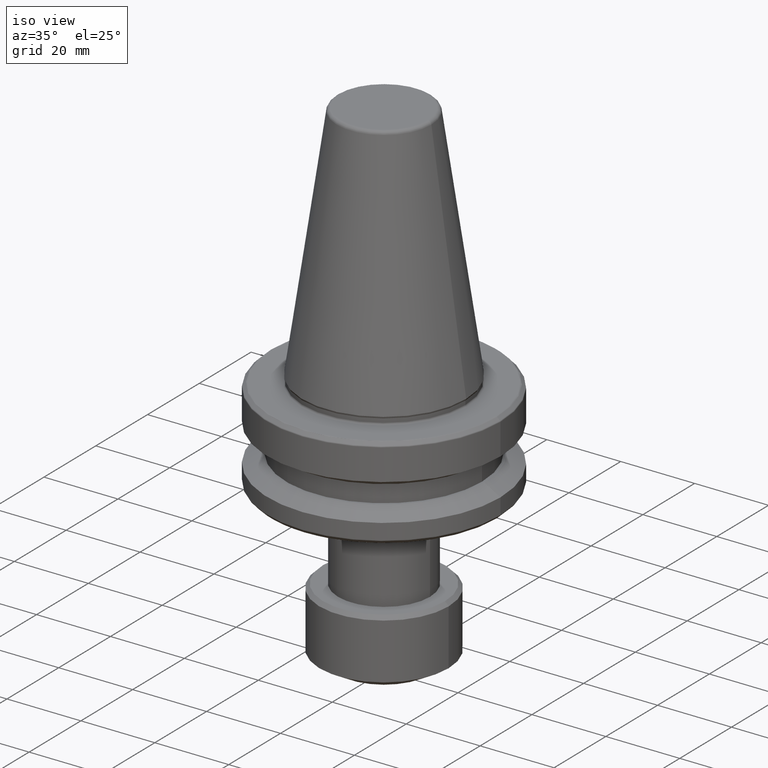
[diagram: clean part render]
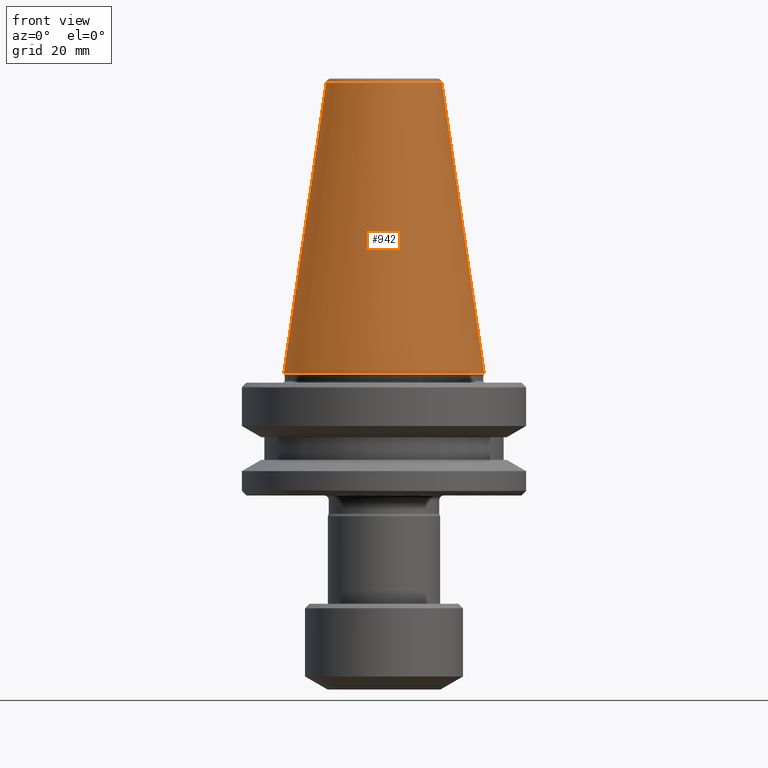
[diagram: tour spotlight — one face highlighted and labeled with its STEP entity id]
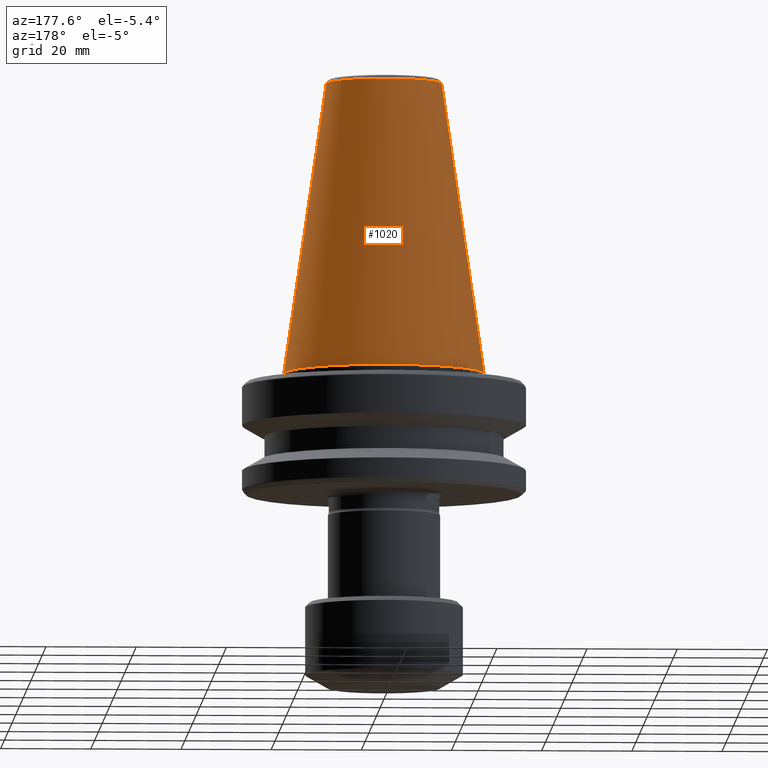
[diagram: tour spotlight — one face highlighted and labeled with its STEP entity id]
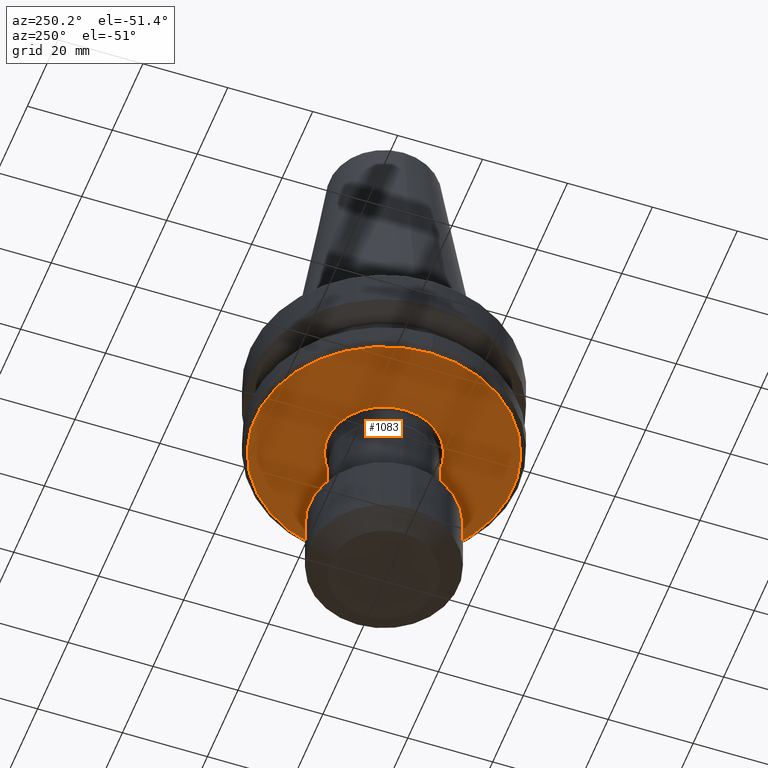
[diagram: tour spotlight — one face highlighted and labeled with its STEP entity id]
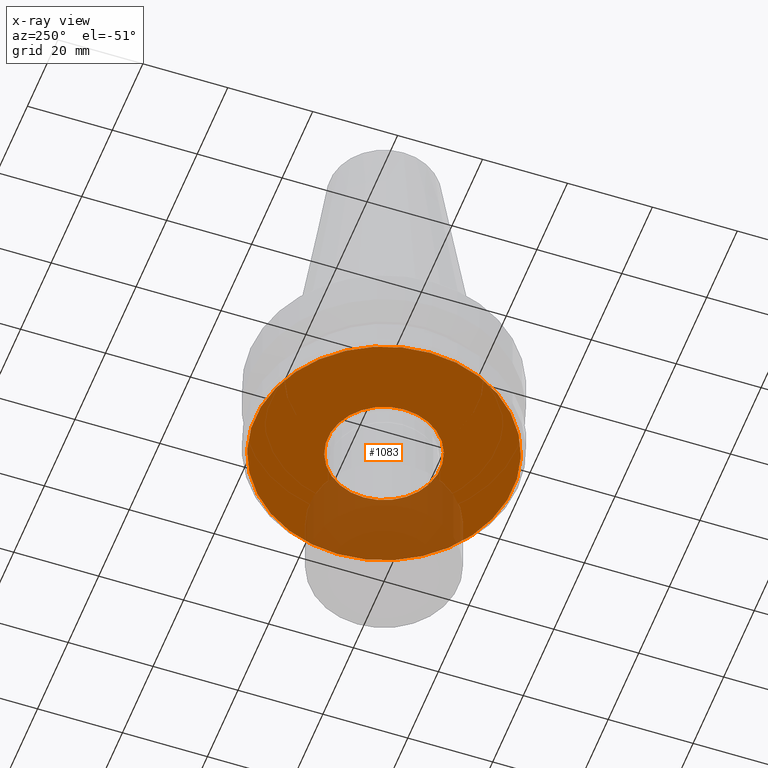
[diagram: x-ray of the same camera — body ghosted, this tour face saturated]
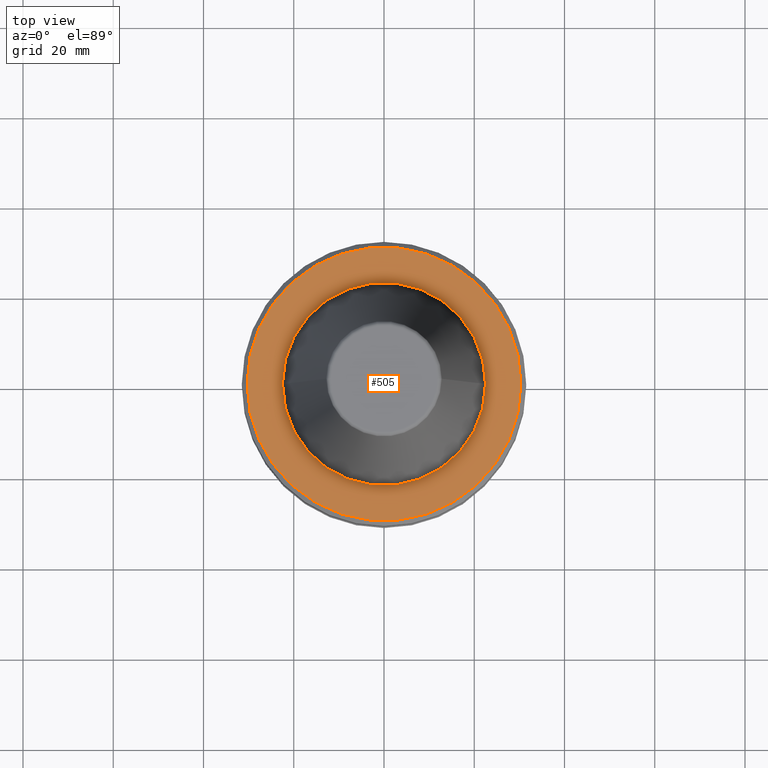
[diagram: tour spotlight — one face highlighted and labeled with its STEP entity id]
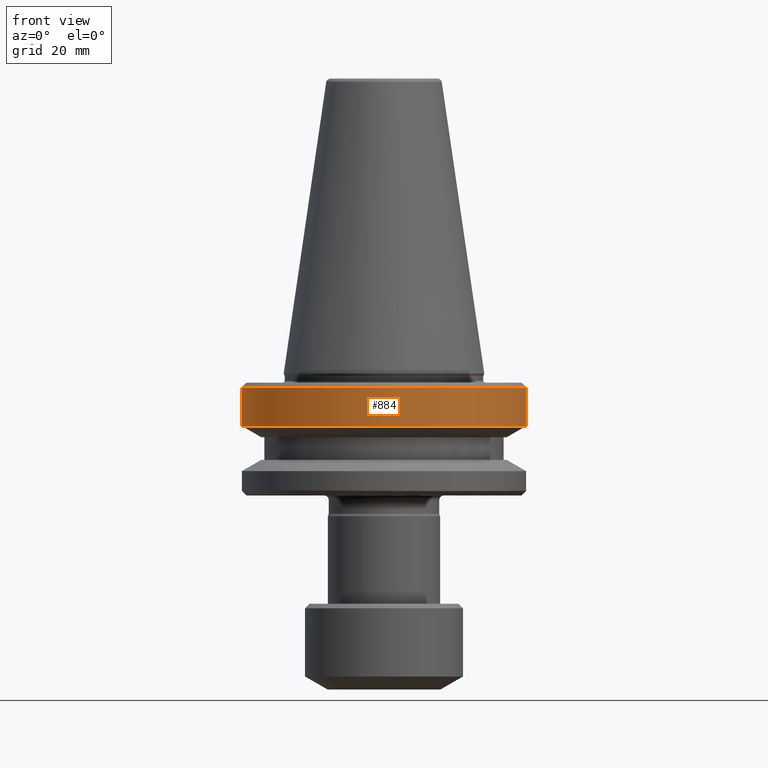
[diagram: tour spotlight — one face highlighted and labeled with its STEP entity id]
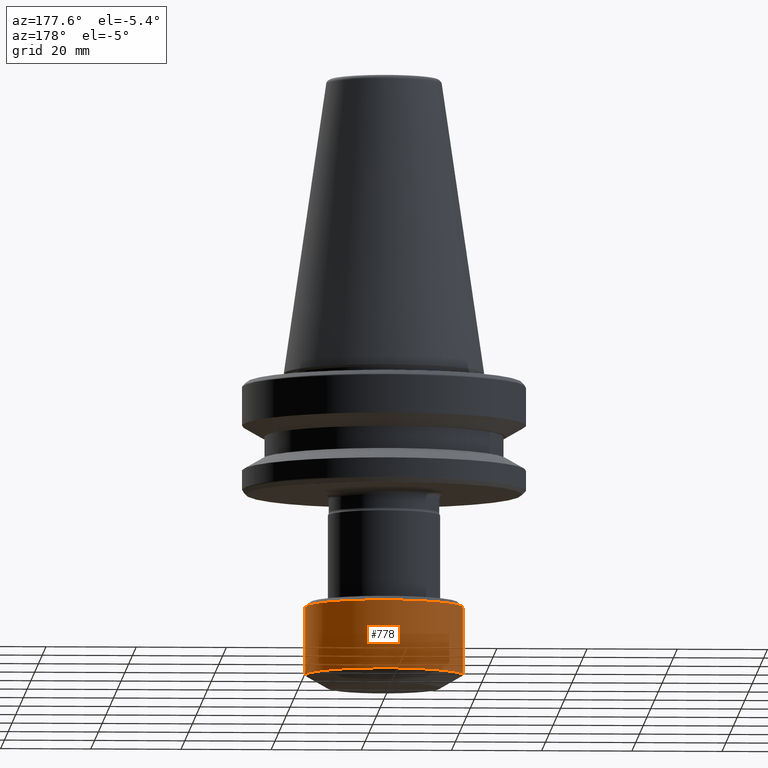
[diagram: tour spotlight — one face highlighted and labeled with its STEP entity id]
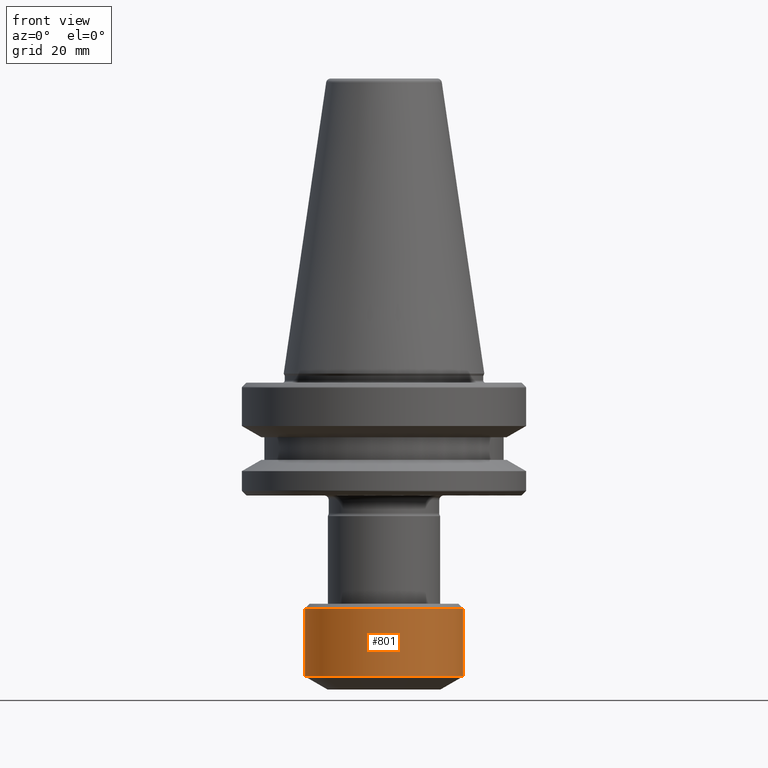
[diagram: tour spotlight — one face highlighted and labeled with its STEP entity id]
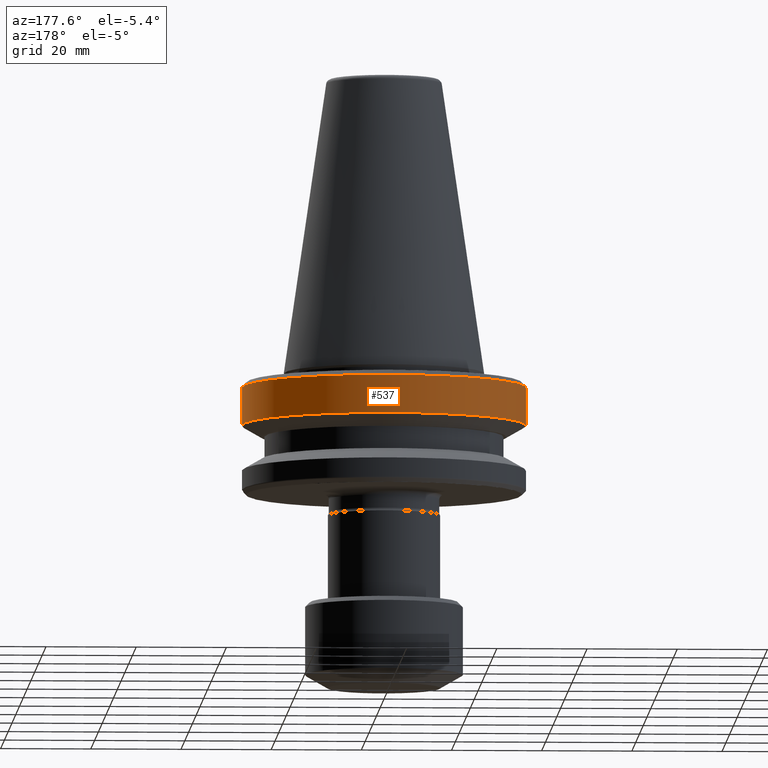
[diagram: tour spotlight — one face highlighted and labeled with its STEP entity id]
A machine part: a face-by-face anatomy tour. The part has 55 B-rep faces; the first image is the clean iso view, then the 8 largest visible faces are spotlighted one at a time (largest first), each with its STEP entity span.

Face 1 — front view, entity #942. In plain terms, the highlighted conical surface has half-angle 8.297 deg.
Definition (entity closure, byte-faithful):
#43 = EDGE_CURVE ( 'NONE', #538, #192, #44, .T. ) ;
#44 = CIRCLE ( 'NONE', #1369, 12.81219950706224800 ) ;
#80 = VERTEX_POINT ( 'NONE', #1199 ) ;
#107 = DIRECTION ( 'NONE',  ( -1.000000000000000000, 0.0000000000000000000, 0.0000000000000000000 ) ) ;
#192 = VERTEX_POINT ( 'NONE', #1040 ) ;
#240 = DIRECTION ( 'NONE',  ( -0.0000000000000000000, -0.0000000000000000000, 1.000000000000000000 ) ) ;
#261 = ORIENTED_EDGE ( 'NONE', *, *, #584, .F. ) ;
#272 = ORIENTED_EDGE ( 'NONE', *, *, #922, .T. ) ;
#306 = EDGE_LOOP ( 'NONE', ( #261, #791, #272, #496 ) ) ;
#315 = DIRECTION ( 'NONE',  ( 1.000000000000000000, 0.0000000000000000000, 0.0000000000000000000 ) ) ;
#345 = CARTESIAN_POINT ( 'NONE',  ( -12.81219950706224800, 0.0000000000000000000, 64.54430822726730800 ) ) ;
#496 = ORIENTED_EDGE ( 'NONE', *, *, #658, .T. ) ;
#538 = VERTEX_POINT ( 'NONE', #345 ) ;
#577 = CONICAL_SURFACE ( 'NONE', #1152, 12.81219950706224800, 0.1448138465474191100 ) ;
#584 = EDGE_CURVE ( 'NONE', #192, #80, #754, .T. ) ;
#591 = FACE_OUTER_BOUND ( 'NONE', #306, .T. ) ;
#597 = VECTOR ( 'NONE', #1475, 1000.000000000000000 ) ;
#622 = CARTESIAN_POINT ( 'NONE',  ( 0.0000000000000000000, 0.0000000000000000000, 64.54430822726730800 ) ) ;
#630 = LINE ( 'NONE', #1101, #597 ) ;
#658 = EDGE_CURVE ( 'NONE', #1290, #80, #719, .T. ) ;
#694 = DIRECTION ( 'NONE',  ( 1.000000000000000000, 0.0000000000000000000, 0.0000000000000000000 ) ) ;
#719 = CIRCLE ( 'NONE', #1305, 22.22500000000000500 ) ;
#749 = VECTOR ( 'NONE', #887, 1000.000000000000000 ) ;
#754 = LINE ( 'NONE', #1326, #749 ) ;
#791 = ORIENTED_EDGE ( 'NONE', *, *, #43, .F. ) ;
#865 = CARTESIAN_POINT ( 'NONE',  ( 0.0000000000000000000, 0.0000000000000000000, 0.0000000000000000000 ) ) ;
#887 = DIRECTION ( 'NONE',  ( 0.1443082272673071000, 1.767266086135364600E-017, -0.9895327864921743500 ) ) ;
#922 = EDGE_CURVE ( 'NONE', #538, #1290, #630, .T. ) ;
#942 = ADVANCED_FACE ( 'NONE', ( #591 ), #577, .T. ) ;
#1040 = CARTESIAN_POINT ( 'NONE',  ( 12.81219950706224800, 2.145409711370550300E-015, 64.54430822726730800 ) ) ;
#1101 = CARTESIAN_POINT ( 'NONE',  ( -12.81219950706224800, 0.0000000000000000000, 64.54430822726730800 ) ) ;
#1152 = AXIS2_PLACEMENT_3D ( 'NONE', #622, #1458, #107 ) ;
#1181 = DIRECTION ( 'NONE',  ( -0.0000000000000000000, -0.0000000000000000000, 1.000000000000000000 ) ) ;
#1199 = CARTESIAN_POINT ( 'NONE',  ( 22.22500000000000500, 0.0000000000000000000, 0.0000000000000000000 ) ) ;
#1203 = CARTESIAN_POINT ( 'NONE',  ( 0.0000000000000000000, 0.0000000000000000000, 64.54430822726730800 ) ) ;
#1290 = VERTEX_POINT ( 'NONE', #1401 ) ;
#1305 = AXIS2_PLACEMENT_3D ( 'NONE', #865, #240, #315 ) ;
#1326 = CARTESIAN_POINT ( 'NONE',  ( 12.81219950706224800, 1.569041911636107800E-015, 64.54430822726730800 ) ) ;
#1369 = AXIS2_PLACEMENT_3D ( 'NONE', #1203, #1181, #694 ) ;
#1401 = CARTESIAN_POINT ( 'NONE',  ( -22.22500000000000500, 2.721777511104993200E-015, 0.0000000000000000000 ) ) ;
#1458 = DIRECTION ( 'NONE',  ( 0.0000000000000000000, 0.0000000000000000000, -1.000000000000000000 ) ) ;
#1475 = DIRECTION ( 'NONE',  ( -0.1443082272673071000, 0.0000000000000000000, -0.9895327864921743500 ) ) ;

Face 2 — auxiliary view, entity #1020. In plain terms, the highlighted conical surface has half-angle 8.297 deg.
Definition (entity closure, byte-faithful):
#1 = ORIENTED_EDGE ( 'NONE', *, *, #24, .T. ) ;
#24 = EDGE_CURVE ( 'NONE', #80, #1290, #38, .T. ) ;
#35 = CARTESIAN_POINT ( 'NONE',  ( 0.0000000000000000000, 0.0000000000000000000, 64.54430822726730800 ) ) ;
#38 = CIRCLE ( 'NONE', #1390, 22.22500000000000500 ) ;
#80 = VERTEX_POINT ( 'NONE', #1199 ) ;
#81 = CARTESIAN_POINT ( 'NONE',  ( 0.0000000000000000000, 0.0000000000000000000, 0.0000000000000000000 ) ) ;
#111 = DIRECTION ( 'NONE',  ( -0.0000000000000000000, -0.0000000000000000000, 1.000000000000000000 ) ) ;
#151 = DIRECTION ( 'NONE',  ( 1.000000000000000000, 0.0000000000000000000, 0.0000000000000000000 ) ) ;
#176 = DIRECTION ( 'NONE',  ( 1.000000000000000000, 0.0000000000000000000, 0.0000000000000000000 ) ) ;
#184 = ORIENTED_EDGE ( 'NONE', *, *, #269, .F. ) ;
#192 = VERTEX_POINT ( 'NONE', #1040 ) ;
#215 = EDGE_LOOP ( 'NONE', ( #184, #1440, #1, #486 ) ) ;
#221 = CARTESIAN_POINT ( 'NONE',  ( 0.0000000000000000000, 0.0000000000000000000, 64.54430822726730800 ) ) ;
#256 = DIRECTION ( 'NONE',  ( -0.0000000000000000000, -0.0000000000000000000, 1.000000000000000000 ) ) ;
#269 = EDGE_CURVE ( 'NONE', #192, #538, #1476, .T. ) ;
#288 = AXIS2_PLACEMENT_3D ( 'NONE', #221, #578, #305 ) ;
#305 = DIRECTION ( 'NONE',  ( -1.000000000000000000, 0.0000000000000000000, 0.0000000000000000000 ) ) ;
#345 = CARTESIAN_POINT ( 'NONE',  ( -12.81219950706224800, 0.0000000000000000000, 64.54430822726730800 ) ) ;
#486 = ORIENTED_EDGE ( 'NONE', *, *, #922, .F. ) ;
#521 = CONICAL_SURFACE ( 'NONE', #288, 12.81219950706224800, 0.1448138465474191100 ) ;
#538 = VERTEX_POINT ( 'NONE', #345 ) ;
#549 = FACE_OUTER_BOUND ( 'NONE', #215, .T. ) ;
#578 = DIRECTION ( 'NONE',  ( 0.0000000000000000000, 0.0000000000000000000, -1.000000000000000000 ) ) ;
#584 = EDGE_CURVE ( 'NONE', #192, #80, #754, .T. ) ;
#597 = VECTOR ( 'NONE', #1475, 1000.000000000000000 ) ;
#630 = LINE ( 'NONE', #1101, #597 ) ;
#749 = VECTOR ( 'NONE', #887, 1000.000000000000000 ) ;
#754 = LINE ( 'NONE', #1326, #749 ) ;
#887 = DIRECTION ( 'NONE',  ( 0.1443082272673071000, 1.767266086135364600E-017, -0.9895327864921743500 ) ) ;
#922 = EDGE_CURVE ( 'NONE', #538, #1290, #630, .T. ) ;
#1020 = ADVANCED_FACE ( 'NONE', ( #549 ), #521, .T. ) ;
#1040 = CARTESIAN_POINT ( 'NONE',  ( 12.81219950706224800, 2.145409711370550300E-015, 64.54430822726730800 ) ) ;
#1101 = CARTESIAN_POINT ( 'NONE',  ( -12.81219950706224800, 0.0000000000000000000, 64.54430822726730800 ) ) ;
#1199 = CARTESIAN_POINT ( 'NONE',  ( 22.22500000000000500, 0.0000000000000000000, 0.0000000000000000000 ) ) ;
#1290 = VERTEX_POINT ( 'NONE', #1401 ) ;
#1293 = AXIS2_PLACEMENT_3D ( 'NONE', #35, #256, #176 ) ;
#1326 = CARTESIAN_POINT ( 'NONE',  ( 12.81219950706224800, 1.569041911636107800E-015, 64.54430822726730800 ) ) ;
#1390 = AXIS2_PLACEMENT_3D ( 'NONE', #81, #111, #151 ) ;
#1401 = CARTESIAN_POINT ( 'NONE',  ( -22.22500000000000500, 2.721777511104993200E-015, 0.0000000000000000000 ) ) ;
#1440 = ORIENTED_EDGE ( 'NONE', *, *, #584, .T. ) ;
#1475 = DIRECTION ( 'NONE',  ( -0.1443082272673071000, 0.0000000000000000000, -0.9895327864921743500 ) ) ;
#1476 = CIRCLE ( 'NONE', #1293, 12.81219950706224800 ) ;

Face 3 — auxiliary view, entity #1083. An x-ray twin of the same camera follows (body ghosted, this face saturated) — the face is partly hidden behind the body. In plain terms, the highlighted planar face has unit normal (0, 0, -1).
Definition (entity closure, byte-faithful):
#10 = AXIS2_PLACEMENT_3D ( 'NONE', #1088, #341, #1197 ) ;
#67 = VERTEX_POINT ( 'NONE', #1210 ) ;
#84 = VERTEX_POINT ( 'NONE', #924 ) ;
#90 = VERTEX_POINT ( 'NONE', #875 ) ;
#101 = ORIENTED_EDGE ( 'NONE', *, *, #1384, .F. ) ;
#125 = DIRECTION ( 'NONE',  ( -0.0000000000000000000, -0.0000000000000000000, 1.000000000000000000 ) ) ;
#149 = EDGE_LOOP ( 'NONE', ( #101, #169 ) ) ;
#169 = ORIENTED_EDGE ( 'NONE', *, *, #980, .F. ) ;
#179 = ORIENTED_EDGE ( 'NONE', *, *, #1151, .T. ) ;
#267 = EDGE_LOOP ( 'NONE', ( #1437, #179 ) ) ;
#309 = DIRECTION ( 'NONE',  ( 1.000000000000000000, 0.0000000000000000000, 0.0000000000000000000 ) ) ;
#341 = DIRECTION ( 'NONE',  ( -0.0000000000000000000, -0.0000000000000000000, 1.000000000000000000 ) ) ;
#419 = AXIS2_PLACEMENT_3D ( 'NONE', #453, #125, #1355 ) ;
#453 = CARTESIAN_POINT ( 'NONE',  ( 0.0000000000000000000, 0.0000000000000000000, -26.99999999999999600 ) ) ;
#459 = PLANE ( 'NONE',  #968 ) ;
#511 = VERTEX_POINT ( 'NONE', #703 ) ;
#524 = FACE_OUTER_BOUND ( 'NONE', #149, .T. ) ;
#576 = CIRCLE ( 'NONE', #1348, 30.33431457505076200 ) ;
#639 = CIRCLE ( 'NONE', #419, 13.25000000000000200 ) ;
#648 = DIRECTION ( 'NONE',  ( -0.0000000000000000000, -0.0000000000000000000, 1.000000000000000000 ) ) ;
#689 = DIRECTION ( 'NONE',  ( 0.0000000000000000000, 0.0000000000000000000, -1.000000000000000000 ) ) ;
#703 = CARTESIAN_POINT ( 'NONE',  ( 13.25000000000000200, 0.0000000000000000000, -26.99999999999999600 ) ) ;
#776 = DIRECTION ( 'NONE',  ( -1.000000000000000000, 0.0000000000000000000, -0.0000000000000000000 ) ) ;
#822 = EDGE_CURVE ( 'NONE', #511, #67, #639, .T. ) ;
#875 = CARTESIAN_POINT ( 'NONE',  ( 30.33431457505076200, 0.0000000000000000000, -26.99999999999999600 ) ) ;
#924 = CARTESIAN_POINT ( 'NONE',  ( -30.33431457505076200, 3.732201245991191800E-015, -26.99999999999999600 ) ) ;
#957 = CIRCLE ( 'NONE', #1364, 30.33431457505076200 ) ;
#958 = DIRECTION ( 'NONE',  ( -0.0000000000000000000, -0.0000000000000000000, 1.000000000000000000 ) ) ;
#968 = AXIS2_PLACEMENT_3D ( 'NONE', #969, #689, #776 ) ;
#969 = CARTESIAN_POINT ( 'NONE',  ( 0.0000000000000000000, 3.088089149698245900E-015, -27.00000000000000400 ) ) ;
#980 = EDGE_CURVE ( 'NONE', #84, #90, #576, .T. ) ;
#1083 = ADVANCED_FACE ( 'NONE', ( #524, #1100 ), #459, .T. ) ;
#1088 = CARTESIAN_POINT ( 'NONE',  ( 0.0000000000000000000, 0.0000000000000000000, -26.99999999999999600 ) ) ;
#1100 = FACE_BOUND ( 'NONE', #267, .T. ) ;
#1151 = EDGE_CURVE ( 'NONE', #67, #511, #1423, .T. ) ;
#1197 = DIRECTION ( 'NONE',  ( 1.000000000000000000, 0.0000000000000000000, 0.0000000000000000000 ) ) ;
#1210 = CARTESIAN_POINT ( 'NONE',  ( -13.25000000000000200, 1.622657008870243300E-015, -26.99999999999999600 ) ) ;
#1325 = CARTESIAN_POINT ( 'NONE',  ( 0.0000000000000000000, 0.0000000000000000000, -26.99999999999999600 ) ) ;
#1339 = CARTESIAN_POINT ( 'NONE',  ( 0.0000000000000000000, 0.0000000000000000000, -26.99999999999999600 ) ) ;
#1348 = AXIS2_PLACEMENT_3D ( 'NONE', #1339, #958, #309 ) ;
#1355 = DIRECTION ( 'NONE',  ( 1.000000000000000000, 0.0000000000000000000, 0.0000000000000000000 ) ) ;
#1364 = AXIS2_PLACEMENT_3D ( 'NONE', #1325, #648, #1411 ) ;
#1384 = EDGE_CURVE ( 'NONE', #90, #84, #957, .T. ) ;
#1411 = DIRECTION ( 'NONE',  ( 1.000000000000000000, 0.0000000000000000000, 0.0000000000000000000 ) ) ;
#1423 = CIRCLE ( 'NONE', #10, 13.25000000000000200 ) ;
#1437 = ORIENTED_EDGE ( 'NONE', *, *, #822, .T. ) ;

Face 4 — top view, entity #505. In plain terms, the highlighted planar face has unit normal (0, -0, 1).
Definition (entity closure, byte-faithful):
#48 = EDGE_CURVE ( 'NONE', #509, #1109, #92, .T. ) ;
#89 = ORIENTED_EDGE ( 'NONE', *, *, #1273, .T. ) ;
#92 = CIRCLE ( 'NONE', #1363, 30.33431457505075800 ) ;
#103 = AXIS2_PLACEMENT_3D ( 'NONE', #617, #975, #211 ) ;
#142 = AXIS2_PLACEMENT_3D ( 'NONE', #1334, #666, #1424 ) ;
#143 = VERTEX_POINT ( 'NONE', #737 ) ;
#202 = ORIENTED_EDGE ( 'NONE', *, *, #490, .F. ) ;
#211 = DIRECTION ( 'NONE',  ( 1.000000000000000000, 0.0000000000000000000, 0.0000000000000000000 ) ) ;
#367 = CARTESIAN_POINT ( 'NONE',  ( 0.0000000000000000000, 0.0000000000000000000, -2.000000000000001800 ) ) ;
#426 = CARTESIAN_POINT ( 'NONE',  ( 30.33431457505075800, 0.0000000000000000000, -2.000000000000001800 ) ) ;
#490 = EDGE_CURVE ( 'NONE', #1409, #143, #787, .T. ) ;
#497 = DIRECTION ( 'NONE',  ( 1.000000000000000000, 0.0000000000000000000, 0.0000000000000000000 ) ) ;
#505 = ADVANCED_FACE ( 'NONE', ( #1024, #1029 ), #788, .T. ) ;
#509 = VERTEX_POINT ( 'NONE', #729 ) ;
#613 = ORIENTED_EDGE ( 'NONE', *, *, #1436, .F. ) ;
#617 = CARTESIAN_POINT ( 'NONE',  ( 0.0000000000000000000, 0.0000000000000000000, -2.000000000000002700 ) ) ;
#660 = AXIS2_PLACEMENT_3D ( 'NONE', #1162, #1191, #1278 ) ;
#666 = DIRECTION ( 'NONE',  ( -0.0000000000000000000, -0.0000000000000000000, 1.000000000000000000 ) ) ;
#693 = CIRCLE ( 'NONE', #142, 22.50000000000000000 ) ;
#726 = ORIENTED_EDGE ( 'NONE', *, *, #48, .T. ) ;
#729 = CARTESIAN_POINT ( 'NONE',  ( -30.33431457505075800, 3.732201245991191100E-015, -2.000000000000001800 ) ) ;
#737 = CARTESIAN_POINT ( 'NONE',  ( 22.50000000000000000, 0.0000000000000000000, -2.000000000000001300 ) ) ;
#787 = CIRCLE ( 'NONE', #660, 22.50000000000000000 ) ;
#788 = PLANE ( 'NONE',  #103 ) ;
#807 = CARTESIAN_POINT ( 'NONE',  ( 0.0000000000000000000, 0.0000000000000000000, -2.000000000000001800 ) ) ;
#862 = AXIS2_PLACEMENT_3D ( 'NONE', #367, #1211, #497 ) ;
#947 = EDGE_LOOP ( 'NONE', ( #89, #726 ) ) ;
#975 = DIRECTION ( 'NONE',  ( 0.0000000000000000000, -0.0000000000000000000, 1.000000000000000000 ) ) ;
#1024 = FACE_OUTER_BOUND ( 'NONE', #947, .T. ) ;
#1029 = FACE_BOUND ( 'NONE', #1340, .T. ) ;
#1109 = VERTEX_POINT ( 'NONE', #426 ) ;
#1115 = DIRECTION ( 'NONE',  ( 1.000000000000000000, 0.0000000000000000000, 0.0000000000000000000 ) ) ;
#1119 = DIRECTION ( 'NONE',  ( -0.0000000000000000000, -0.0000000000000000000, 1.000000000000000000 ) ) ;
#1162 = CARTESIAN_POINT ( 'NONE',  ( 0.0000000000000000000, 0.0000000000000000000, -2.000000000000001800 ) ) ;
#1191 = DIRECTION ( 'NONE',  ( -0.0000000000000000000, -0.0000000000000000000, 1.000000000000000000 ) ) ;
#1211 = DIRECTION ( 'NONE',  ( -0.0000000000000000000, -0.0000000000000000000, 1.000000000000000000 ) ) ;
#1213 = CIRCLE ( 'NONE', #862, 30.33431457505075800 ) ;
#1273 = EDGE_CURVE ( 'NONE', #1109, #509, #1213, .T. ) ;
#1278 = DIRECTION ( 'NONE',  ( 1.000000000000000000, 0.0000000000000000000, 0.0000000000000000000 ) ) ;
#1334 = CARTESIAN_POINT ( 'NONE',  ( 0.0000000000000000000, 0.0000000000000000000, -2.000000000000001800 ) ) ;
#1340 = EDGE_LOOP ( 'NONE', ( #613, #202 ) ) ;
#1363 = AXIS2_PLACEMENT_3D ( 'NONE', #807, #1119, #1115 ) ;
#1409 = VERTEX_POINT ( 'NONE', #1416 ) ;
#1416 = CARTESIAN_POINT ( 'NONE',  ( -22.50000000000000000, 2.755455298081544800E-015, -2.000000000000001300 ) ) ;
#1424 = DIRECTION ( 'NONE',  ( 1.000000000000000000, 0.0000000000000000000, 0.0000000000000000000 ) ) ;
#1436 = EDGE_CURVE ( 'NONE', #143, #1409, #693, .T. ) ;

Face 5 — front view, entity #884. In plain terms, the highlighted cylindrical surface (partial cylindrical patch) has radius 31.5 mm, axis along (-0, -0, 1).
Definition (entity closure, byte-faithful):
#51 = DIRECTION ( 'NONE',  ( -0.0000000000000000000, -0.0000000000000000000, 1.000000000000000000 ) ) ;
#70 = ORIENTED_EDGE ( 'NONE', *, *, #278, .F. ) ;
#141 = CARTESIAN_POINT ( 'NONE',  ( -31.50000000000000000, 3.857637417314162700E-015, -11.59985799368323700 ) ) ;
#144 = ORIENTED_EDGE ( 'NONE', *, *, #763, .T. ) ;
#153 = AXIS2_PLACEMENT_3D ( 'NONE', #250, #1127, #1410 ) ;
#250 = CARTESIAN_POINT ( 'NONE',  ( 0.0000000000000000000, 0.0000000000000000000, -11.59985799368323700 ) ) ;
#265 = DIRECTION ( 'NONE',  ( -0.0000000000000000000, -0.0000000000000000000, 1.000000000000000000 ) ) ;
#278 = EDGE_CURVE ( 'NONE', #439, #487, #1160, .T. ) ;
#299 = VECTOR ( 'NONE', #1468, 1000.000000000000000 ) ;
#400 = EDGE_CURVE ( 'NONE', #619, #487, #923, .T. ) ;
#421 = VERTEX_POINT ( 'NONE', #141 ) ;
#439 = VERTEX_POINT ( 'NONE', #748 ) ;
#443 = CARTESIAN_POINT ( 'NONE',  ( 31.49999999999999300, 0.0000000000000000000, -3.165685424949243700 ) ) ;
#487 = VERTEX_POINT ( 'NONE', #443 ) ;
#539 = EDGE_CURVE ( 'NONE', #421, #439, #761, .T. ) ;
#574 = CARTESIAN_POINT ( 'NONE',  ( 0.0000000000000000000, 0.0000000000000000000, 69.75694866325665100 ) ) ;
#601 = CYLINDRICAL_SURFACE ( 'NONE', #1075, 31.50000000000000000 ) ;
#608 = DIRECTION ( 'NONE',  ( -0.0000000000000000000, -0.0000000000000000000, 1.000000000000000000 ) ) ;
#619 = VERTEX_POINT ( 'NONE', #644 ) ;
#621 = FACE_OUTER_BOUND ( 'NONE', #1391, .T. ) ;
#644 = CARTESIAN_POINT ( 'NONE',  ( 31.50000000000000000, 0.0000000000000000000, -11.59985799368323700 ) ) ;
#678 = CIRCLE ( 'NONE', #153, 31.50000000000000000 ) ;
#748 = CARTESIAN_POINT ( 'NONE',  ( -31.49999999999999300, 3.857637417314161900E-015, -3.165685424949243700 ) ) ;
#761 = LINE ( 'NONE', #1198, #299 ) ;
#763 = EDGE_CURVE ( 'NONE', #421, #619, #678, .T. ) ;
#814 = ORIENTED_EDGE ( 'NONE', *, *, #400, .T. ) ;
#879 = DIRECTION ( 'NONE',  ( 1.000000000000000000, 0.0000000000000000000, 0.0000000000000000000 ) ) ;
#884 = ADVANCED_FACE ( 'NONE', ( #621 ), #601, .T. ) ;
#923 = LINE ( 'NONE', #1332, #1453 ) ;
#993 = CARTESIAN_POINT ( 'NONE',  ( 0.0000000000000000000, 0.0000000000000000000, -3.165685424949243700 ) ) ;
#1075 = AXIS2_PLACEMENT_3D ( 'NONE', #574, #51, #1282 ) ;
#1127 = DIRECTION ( 'NONE',  ( -0.0000000000000000000, -0.0000000000000000000, 1.000000000000000000 ) ) ;
#1160 = CIRCLE ( 'NONE', #1233, 31.49999999999999300 ) ;
#1198 = CARTESIAN_POINT ( 'NONE',  ( -31.50000000000000000, 3.857637417314162700E-015, 69.75694866325665100 ) ) ;
#1233 = AXIS2_PLACEMENT_3D ( 'NONE', #993, #265, #879 ) ;
#1282 = DIRECTION ( 'NONE',  ( 1.000000000000000000, 0.0000000000000000000, 0.0000000000000000000 ) ) ;
#1332 = CARTESIAN_POINT ( 'NONE',  ( 31.50000000000000000, 0.0000000000000000000, 69.75694866325665100 ) ) ;
#1391 = EDGE_LOOP ( 'NONE', ( #1400, #144, #814, #70 ) ) ;
#1400 = ORIENTED_EDGE ( 'NONE', *, *, #539, .F. ) ;
#1410 = DIRECTION ( 'NONE',  ( 1.000000000000000000, 0.0000000000000000000, 0.0000000000000000000 ) ) ;
#1453 = VECTOR ( 'NONE', #608, 1000.000000000000000 ) ;
#1468 = DIRECTION ( 'NONE',  ( -0.0000000000000000000, -0.0000000000000000000, 1.000000000000000000 ) ) ;

Face 6 — auxiliary view, entity #778. In plain terms, the highlighted cylindrical surface (partial cylindrical patch) has radius 17.499 mm, axis along (-0, -0, 1).
Definition (entity closure, byte-faithful):
#7 = VECTOR ( 'NONE', #482, 1000.000000000000000 ) ;
#12 = DIRECTION ( 'NONE',  ( -0.0000000000000000000, -0.0000000000000000000, 1.000000000000000000 ) ) ;
#86 = ORIENTED_EDGE ( 'NONE', *, *, #522, .T. ) ;
#133 = EDGE_CURVE ( 'NONE', #150, #175, #376, .T. ) ;
#134 = CARTESIAN_POINT ( 'NONE',  ( -17.49901631902815100, 2.143011432332512400E-015, -67.11324865405345000 ) ) ;
#150 = VERTEX_POINT ( 'NONE', #712 ) ;
#175 = VERTEX_POINT ( 'NONE', #777 ) ;
#197 = ORIENTED_EDGE ( 'NONE', *, *, #133, .F. ) ;
#219 = CARTESIAN_POINT ( 'NONE',  ( -17.49901631902815100, 2.143011432332512400E-015, -51.00000000000000700 ) ) ;
#231 = ORIENTED_EDGE ( 'NONE', *, *, #973, .F. ) ;
#316 = AXIS2_PLACEMENT_3D ( 'NONE', #681, #12, #1274 ) ;
#376 = CIRCLE ( 'NONE', #1366, 17.49901631902815100 ) ;
#417 = DIRECTION ( 'NONE',  ( -0.0000000000000000000, -0.0000000000000000000, 1.000000000000000000 ) ) ;
#445 = CARTESIAN_POINT ( 'NONE',  ( 17.49901631902815100, 0.0000000000000000000, -51.00000000000000700 ) ) ;
#454 = VERTEX_POINT ( 'NONE', #134 ) ;
#482 = DIRECTION ( 'NONE',  ( -0.0000000000000000000, -0.0000000000000000000, 1.000000000000000000 ) ) ;
#512 = DIRECTION ( 'NONE',  ( 1.000000000000000000, 0.0000000000000000000, 0.0000000000000000000 ) ) ;
#522 = EDGE_CURVE ( 'NONE', #1353, #454, #783, .T. ) ;
#556 = EDGE_LOOP ( 'NONE', ( #86, #1080, #197, #231 ) ) ;
#568 = VECTOR ( 'NONE', #417, 1000.000000000000000 ) ;
#569 = LINE ( 'NONE', #445, #568 ) ;
#585 = AXIS2_PLACEMENT_3D ( 'NONE', #1413, #899, #512 ) ;
#646 = CYLINDRICAL_SURFACE ( 'NONE', #585, 17.49901631902815100 ) ;
#662 = FACE_OUTER_BOUND ( 'NONE', #556, .T. ) ;
#681 = CARTESIAN_POINT ( 'NONE',  ( 0.0000000000000000000, 0.0000000000000000000, -67.11324865405345000 ) ) ;
#699 = CARTESIAN_POINT ( 'NONE',  ( 0.0000000000000000000, 0.0000000000000000000, -52.00000000000000000 ) ) ;
#712 = CARTESIAN_POINT ( 'NONE',  ( 17.49901631902815100, 2.143011432332512400E-015, -52.00000000000000000 ) ) ;
#720 = DIRECTION ( 'NONE',  ( -0.0000000000000000000, -0.0000000000000000000, 1.000000000000000000 ) ) ;
#777 = CARTESIAN_POINT ( 'NONE',  ( -17.49901631902815100, 0.0000000000000000000, -52.00000000000000000 ) ) ;
#778 = ADVANCED_FACE ( 'NONE', ( #662 ), #646, .T. ) ;
#783 = CIRCLE ( 'NONE', #316, 17.49901631902815100 ) ;
#899 = DIRECTION ( 'NONE',  ( -0.0000000000000000000, -0.0000000000000000000, 1.000000000000000000 ) ) ;
#973 = EDGE_CURVE ( 'NONE', #1353, #150, #569, .T. ) ;
#987 = DIRECTION ( 'NONE',  ( 1.000000000000000000, 0.0000000000000000000, 0.0000000000000000000 ) ) ;
#1080 = ORIENTED_EDGE ( 'NONE', *, *, #1218, .T. ) ;
#1218 = EDGE_CURVE ( 'NONE', #454, #175, #1302, .T. ) ;
#1274 = DIRECTION ( 'NONE',  ( 1.000000000000000000, 0.0000000000000000000, 0.0000000000000000000 ) ) ;
#1302 = LINE ( 'NONE', #219, #7 ) ;
#1353 = VERTEX_POINT ( 'NONE', #1408 ) ;
#1366 = AXIS2_PLACEMENT_3D ( 'NONE', #699, #720, #987 ) ;
#1408 = CARTESIAN_POINT ( 'NONE',  ( 17.49901631902815100, 0.0000000000000000000, -67.11324865405345000 ) ) ;
#1413 = CARTESIAN_POINT ( 'NONE',  ( 0.0000000000000000000, 0.0000000000000000000, -51.00000000000000700 ) ) ;

Face 7 — front view, entity #801. In plain terms, the highlighted cylindrical surface (partial cylindrical patch) has radius 17.499 mm, axis along (-0, -0, 1).
Definition (entity closure, byte-faithful):
#7 = VECTOR ( 'NONE', #482, 1000.000000000000000 ) ;
#134 = CARTESIAN_POINT ( 'NONE',  ( -17.49901631902815100, 2.143011432332512400E-015, -67.11324865405345000 ) ) ;
#139 = ORIENTED_EDGE ( 'NONE', *, *, #973, .T. ) ;
#150 = VERTEX_POINT ( 'NONE', #712 ) ;
#175 = VERTEX_POINT ( 'NONE', #777 ) ;
#214 = CARTESIAN_POINT ( 'NONE',  ( 0.0000000000000000000, 0.0000000000000000000, -51.00000000000000700 ) ) ;
#219 = CARTESIAN_POINT ( 'NONE',  ( -17.49901631902815100, 2.143011432332512400E-015, -51.00000000000000700 ) ) ;
#391 = ORIENTED_EDGE ( 'NONE', *, *, #515, .F. ) ;
#417 = DIRECTION ( 'NONE',  ( -0.0000000000000000000, -0.0000000000000000000, 1.000000000000000000 ) ) ;
#445 = CARTESIAN_POINT ( 'NONE',  ( 17.49901631902815100, 0.0000000000000000000, -51.00000000000000700 ) ) ;
#454 = VERTEX_POINT ( 'NONE', #134 ) ;
#482 = DIRECTION ( 'NONE',  ( -0.0000000000000000000, -0.0000000000000000000, 1.000000000000000000 ) ) ;
#495 = AXIS2_PLACEMENT_3D ( 'NONE', #551, #1179, #983 ) ;
#515 = EDGE_CURVE ( 'NONE', #175, #150, #775, .T. ) ;
#551 = CARTESIAN_POINT ( 'NONE',  ( 0.0000000000000000000, 0.0000000000000000000, -67.11324865405345000 ) ) ;
#568 = VECTOR ( 'NONE', #417, 1000.000000000000000 ) ;
#569 = LINE ( 'NONE', #445, #568 ) ;
#638 = CYLINDRICAL_SURFACE ( 'NONE', #684, 17.49901631902815100 ) ;
#651 = FACE_OUTER_BOUND ( 'NONE', #1303, .T. ) ;
#657 = CIRCLE ( 'NONE', #495, 17.49901631902815100 ) ;
#684 = AXIS2_PLACEMENT_3D ( 'NONE', #214, #813, #1231 ) ;
#712 = CARTESIAN_POINT ( 'NONE',  ( 17.49901631902815100, 2.143011432332512400E-015, -52.00000000000000000 ) ) ;
#775 = CIRCLE ( 'NONE', #1189, 17.49901631902815100 ) ;
#777 = CARTESIAN_POINT ( 'NONE',  ( -17.49901631902815100, 0.0000000000000000000, -52.00000000000000000 ) ) ;
#801 = ADVANCED_FACE ( 'NONE', ( #651 ), #638, .T. ) ;
#813 = DIRECTION ( 'NONE',  ( -0.0000000000000000000, -0.0000000000000000000, 1.000000000000000000 ) ) ;
#850 = EDGE_CURVE ( 'NONE', #454, #1353, #657, .T. ) ;
#858 = DIRECTION ( 'NONE',  ( 1.000000000000000000, 0.0000000000000000000, 0.0000000000000000000 ) ) ;
#937 = DIRECTION ( 'NONE',  ( -0.0000000000000000000, -0.0000000000000000000, 1.000000000000000000 ) ) ;
#973 = EDGE_CURVE ( 'NONE', #1353, #150, #569, .T. ) ;
#979 = CARTESIAN_POINT ( 'NONE',  ( 0.0000000000000000000, 0.0000000000000000000, -52.00000000000000000 ) ) ;
#983 = DIRECTION ( 'NONE',  ( 1.000000000000000000, 0.0000000000000000000, 0.0000000000000000000 ) ) ;
#1013 = ORIENTED_EDGE ( 'NONE', *, *, #850, .T. ) ;
#1179 = DIRECTION ( 'NONE',  ( -0.0000000000000000000, -0.0000000000000000000, 1.000000000000000000 ) ) ;
#1189 = AXIS2_PLACEMENT_3D ( 'NONE', #979, #937, #858 ) ;
#1218 = EDGE_CURVE ( 'NONE', #454, #175, #1302, .T. ) ;
#1231 = DIRECTION ( 'NONE',  ( 1.000000000000000000, 0.0000000000000000000, 0.0000000000000000000 ) ) ;
#1277 = ORIENTED_EDGE ( 'NONE', *, *, #1218, .F. ) ;
#1302 = LINE ( 'NONE', #219, #7 ) ;
#1303 = EDGE_LOOP ( 'NONE', ( #1277, #1013, #139, #391 ) ) ;
#1353 = VERTEX_POINT ( 'NONE', #1408 ) ;
#1408 = CARTESIAN_POINT ( 'NONE',  ( 17.49901631902815100, 0.0000000000000000000, -67.11324865405345000 ) ) ;

Face 8 — auxiliary view, entity #537. In plain terms, the highlighted cylindrical surface (partial cylindrical patch) has radius 31.5 mm, axis along (-0, -0, 1).
Definition (entity closure, byte-faithful):
#60 = ORIENTED_EDGE ( 'NONE', *, *, #539, .T. ) ;
#74 = ORIENTED_EDGE ( 'NONE', *, *, #257, .T. ) ;
#93 = CIRCLE ( 'NONE', #1079, 31.49999999999999300 ) ;
#141 = CARTESIAN_POINT ( 'NONE',  ( -31.50000000000000000, 3.857637417314162700E-015, -11.59985799368323700 ) ) ;
#157 = DIRECTION ( 'NONE',  ( 1.000000000000000000, 0.0000000000000000000, 0.0000000000000000000 ) ) ;
#178 = DIRECTION ( 'NONE',  ( -0.0000000000000000000, -0.0000000000000000000, 1.000000000000000000 ) ) ;
#257 = EDGE_CURVE ( 'NONE', #619, #421, #1357, .T. ) ;
#299 = VECTOR ( 'NONE', #1468, 1000.000000000000000 ) ;
#346 = AXIS2_PLACEMENT_3D ( 'NONE', #687, #1028, #716 ) ;
#400 = EDGE_CURVE ( 'NONE', #619, #487, #923, .T. ) ;
#414 = EDGE_CURVE ( 'NONE', #487, #439, #93, .T. ) ;
#421 = VERTEX_POINT ( 'NONE', #141 ) ;
#439 = VERTEX_POINT ( 'NONE', #748 ) ;
#443 = CARTESIAN_POINT ( 'NONE',  ( 31.49999999999999300, 0.0000000000000000000, -3.165685424949243700 ) ) ;
#456 = ORIENTED_EDGE ( 'NONE', *, *, #400, .F. ) ;
#487 = VERTEX_POINT ( 'NONE', #443 ) ;
#494 = ORIENTED_EDGE ( 'NONE', *, *, #414, .F. ) ;
#537 = ADVANCED_FACE ( 'NONE', ( #765 ), #758, .T. ) ;
#539 = EDGE_CURVE ( 'NONE', #421, #439, #761, .T. ) ;
#598 = DIRECTION ( 'NONE',  ( -0.0000000000000000000, -0.0000000000000000000, 1.000000000000000000 ) ) ;
#604 = CARTESIAN_POINT ( 'NONE',  ( 0.0000000000000000000, 0.0000000000000000000, -11.59985799368323700 ) ) ;
#608 = DIRECTION ( 'NONE',  ( -0.0000000000000000000, -0.0000000000000000000, 1.000000000000000000 ) ) ;
#618 = EDGE_LOOP ( 'NONE', ( #74, #60, #494, #456 ) ) ;
#619 = VERTEX_POINT ( 'NONE', #644 ) ;
#644 = CARTESIAN_POINT ( 'NONE',  ( 31.50000000000000000, 0.0000000000000000000, -11.59985799368323700 ) ) ;
#661 = DIRECTION ( 'NONE',  ( 1.000000000000000000, 0.0000000000000000000, 0.0000000000000000000 ) ) ;
#687 = CARTESIAN_POINT ( 'NONE',  ( 0.0000000000000000000, 0.0000000000000000000, 69.75694866325665100 ) ) ;
#697 = AXIS2_PLACEMENT_3D ( 'NONE', #604, #598, #661 ) ;
#716 = DIRECTION ( 'NONE',  ( 1.000000000000000000, 0.0000000000000000000, 0.0000000000000000000 ) ) ;
#748 = CARTESIAN_POINT ( 'NONE',  ( -31.49999999999999300, 3.857637417314161900E-015, -3.165685424949243700 ) ) ;
#758 = CYLINDRICAL_SURFACE ( 'NONE', #346, 31.50000000000000000 ) ;
#761 = LINE ( 'NONE', #1198, #299 ) ;
#765 = FACE_OUTER_BOUND ( 'NONE', #618, .T. ) ;
#923 = LINE ( 'NONE', #1332, #1453 ) ;
#1028 = DIRECTION ( 'NONE',  ( -0.0000000000000000000, -0.0000000000000000000, 1.000000000000000000 ) ) ;
#1079 = AXIS2_PLACEMENT_3D ( 'NONE', #1225, #178, #157 ) ;
#1198 = CARTESIAN_POINT ( 'NONE',  ( -31.50000000000000000, 3.857637417314162700E-015, 69.75694866325665100 ) ) ;
#1225 = CARTESIAN_POINT ( 'NONE',  ( 0.0000000000000000000, 0.0000000000000000000, -3.165685424949243700 ) ) ;
#1332 = CARTESIAN_POINT ( 'NONE',  ( 31.50000000000000000, 0.0000000000000000000, 69.75694866325665100 ) ) ;
#1357 = CIRCLE ( 'NONE', #697, 31.50000000000000000 ) ;
#1453 = VECTOR ( 'NONE', #608, 1000.000000000000000 ) ;
#1468 = DIRECTION ( 'NONE',  ( -0.0000000000000000000, -0.0000000000000000000, 1.000000000000000000 ) ) ;